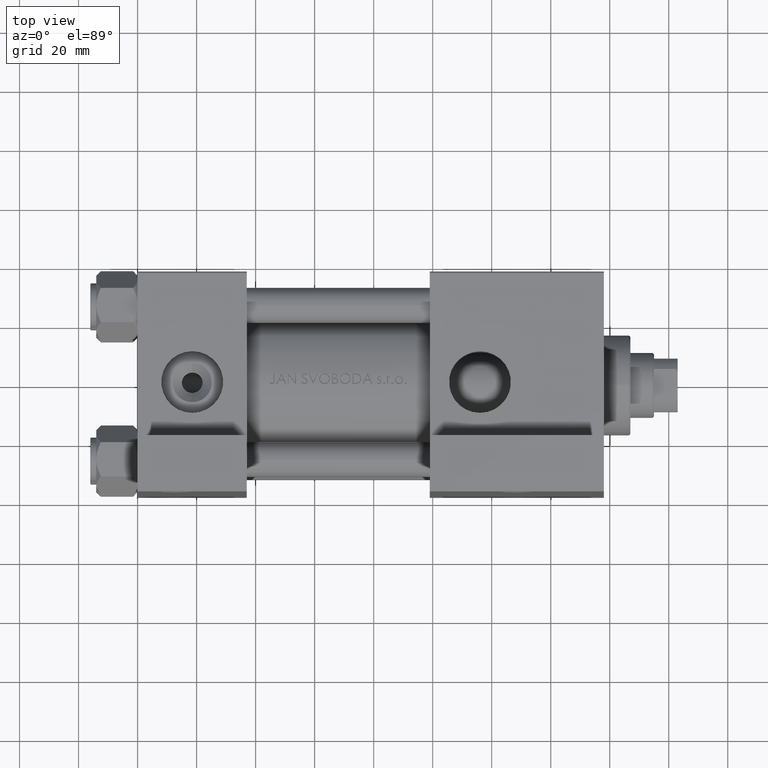
[diagram: clean part render]
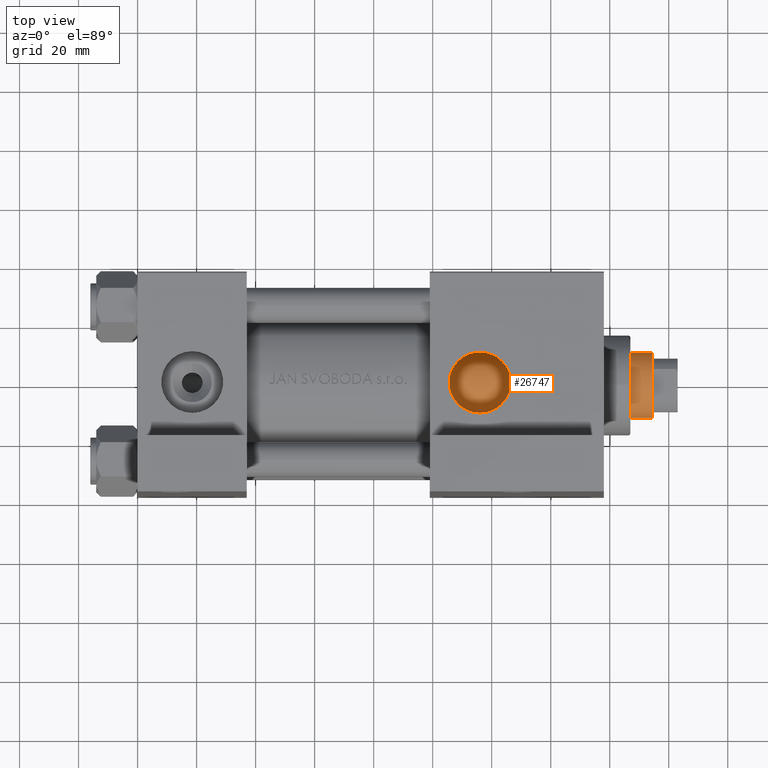
[diagram: same view with one face highlighted and labeled with its STEP entity id]
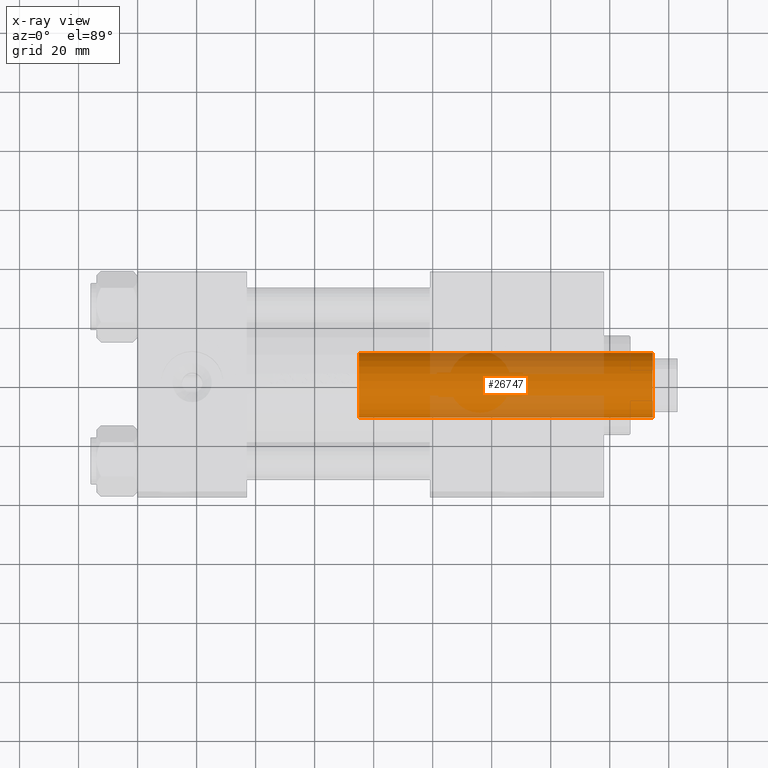
[diagram: x-ray of the same camera — body ghosted, the highlighted face saturated]
A machine part, top view. The second image highlights one B-rep face of the part: STEP entity #26747.
The next image is the same camera in x-ray: the body ghosted, the highlighted face saturated — about 30% of this face is hidden behind the body in this view.
In plain terms, the highlighted cylindrical surface (edge-blend (fillet) strip) has radius 11 mm, axis along (-1, 0, 0).
Its self-contained STEP definition (entity closure, byte-faithful):
#164 = AXIS2_PLACEMENT_3D ( 'NONE', #43881, #9739, #24925 ) ;
#986 = EDGE_CURVE ( 'NONE', #33294, #16910, #1658, .T. ) ;
#1658 = CIRCLE ( 'NONE', #46231, 11.00000000000000000 ) ;
#2397 = LINE ( 'NONE', #12888, #18329 ) ;
#2818 = DIRECTION ( 'NONE',  ( 1.000000000000000000, 0.000000000000000000, 0.000000000000000000 ) ) ;
#5779 = DIRECTION ( 'NONE',  ( -0.000000000000000000, -0.000000000000000000, -1.000000000000000000 ) ) ;
#9739 = DIRECTION ( 'NONE',  ( -0.000000000000000000, -0.000000000000000000, -1.000000000000000000 ) ) ;
#10233 = ORIENTED_EDGE ( 'NONE', *, *, #18520, .T. ) ;
#10481 = VERTEX_POINT ( 'NONE', #44521 ) ;
#11635 = ORIENTED_EDGE ( 'NONE', *, *, #18039, .T. ) ;
#12888 = CARTESIAN_POINT ( 'NONE',  ( -11.00000000000000000, 0.000000000000000000, 138.0000000000000000 ) ) ;
#13222 = VERTEX_POINT ( 'NONE', #14694 ) ;
#13281 = DIRECTION ( 'NONE',  ( 1.000000000000000000, 0.000000000000000000, 0.000000000000000000 ) ) ;
#13471 = CYLINDRICAL_SURFACE ( 'NONE', #164, 11.00000000000000000 ) ;
#14672 = VECTOR ( 'NONE', #5779, 1000.000000000000000 ) ;
#14694 = CARTESIAN_POINT ( 'NONE',  ( 11.00000000000000000, 1.347111479062088405E-15, 137.4999999999999716 ) ) ;
#16910 = VERTEX_POINT ( 'NONE', #47000 ) ;
#17733 = EDGE_LOOP ( 'NONE', ( #47023, #11635, #10233, #38370 ) ) ;
#18039 = EDGE_CURVE ( 'NONE', #13222, #10481, #23088, .T. ) ;
#18329 = VECTOR ( 'NONE', #32327, 1000.000000000000000 ) ;
#18520 = EDGE_CURVE ( 'NONE', #10481, #33294, #2397, .T. ) ;
#23088 = CIRCLE ( 'NONE', #39045, 11.00000000000000000 ) ;
#24925 = DIRECTION ( 'NONE',  ( -1.000000000000000000, 0.000000000000000000, 0.000000000000000000 ) ) ;
#25266 = CARTESIAN_POINT ( 'NONE',  ( 0.000000000000000000, 0.000000000000000000, 137.4999999999999716 ) ) ;
#26747 = ADVANCED_FACE ( 'NONE', ( #32419 ), #13471, .T. ) ;
#28225 = DIRECTION ( 'NONE',  ( 0.000000000000000000, 0.000000000000000000, 1.000000000000000000 ) ) ;
#32201 = EDGE_CURVE ( 'NONE', #13222, #16910, #46889, .T. ) ;
#32327 = DIRECTION ( 'NONE',  ( -0.000000000000000000, -0.000000000000000000, -1.000000000000000000 ) ) ;
#32419 = FACE_OUTER_BOUND ( 'NONE', #17733, .T. ) ;
#33294 = VERTEX_POINT ( 'NONE', #48210 ) ;
#38370 = ORIENTED_EDGE ( 'NONE', *, *, #986, .T. ) ;
#38956 = CARTESIAN_POINT ( 'NONE',  ( 0.000000000000000000, 0.000000000000000000, 38.00000000000000000 ) ) ;
#39045 = AXIS2_PLACEMENT_3D ( 'NONE', #25266, #40469, #2818 ) ;
#40469 = DIRECTION ( 'NONE',  ( 0.000000000000000000, 0.000000000000000000, -1.000000000000000000 ) ) ;
#43881 = CARTESIAN_POINT ( 'NONE',  ( 0.000000000000000000, 0.000000000000000000, 138.0000000000000000 ) ) ;
#44521 = CARTESIAN_POINT ( 'NONE',  ( -11.00000000000000000, 0.000000000000000000, 137.4999999999999716 ) ) ;
#46231 = AXIS2_PLACEMENT_3D ( 'NONE', #38956, #28225, #13281 ) ;
#46889 = LINE ( 'NONE', #47390, #14672 ) ;
#47000 = CARTESIAN_POINT ( 'NONE',  ( 11.00000000000000000, 1.347111479062088405E-15, 38.00000000000000000 ) ) ;
#47023 = ORIENTED_EDGE ( 'NONE', *, *, #32201, .F. ) ;
#47390 = CARTESIAN_POINT ( 'NONE',  ( 11.00000000000000000, 1.347111479062088405E-15, 138.0000000000000000 ) ) ;
#48210 = CARTESIAN_POINT ( 'NONE',  ( -11.00000000000000000, 0.000000000000000000, 38.00000000000000000 ) ) ;